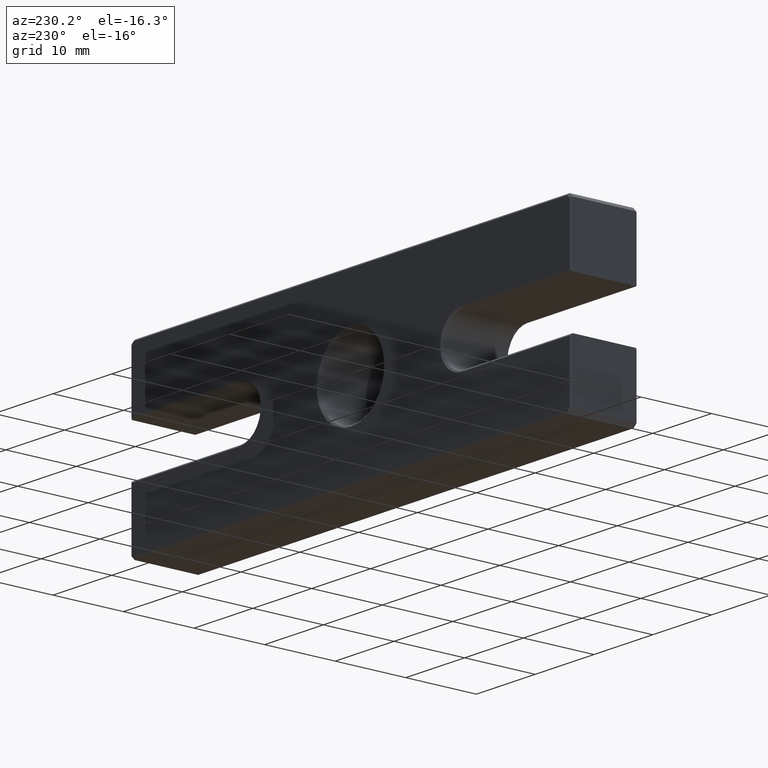
[diagram: clean part render]
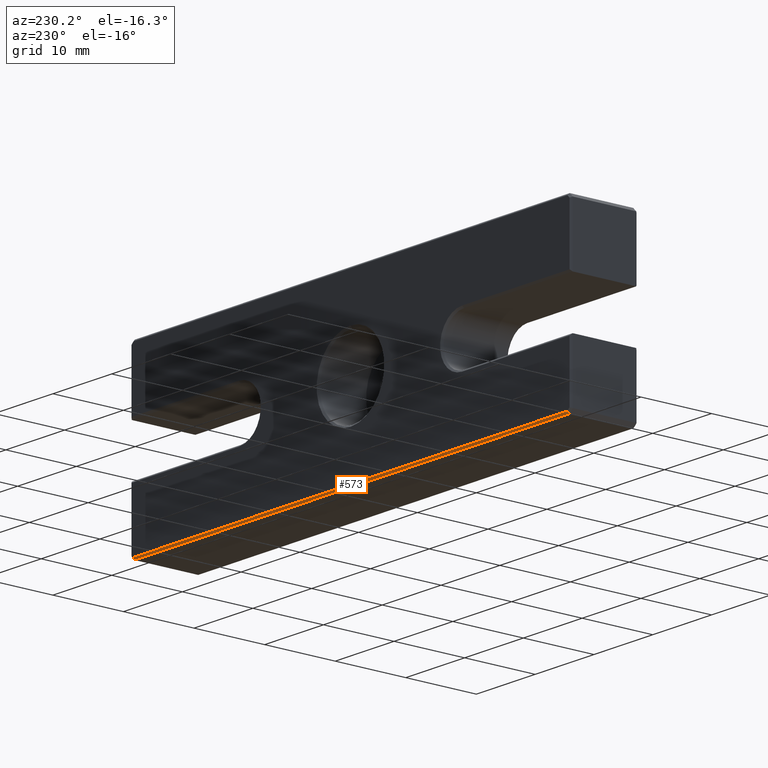
[diagram: same view with one face highlighted and labeled with its STEP entity id]
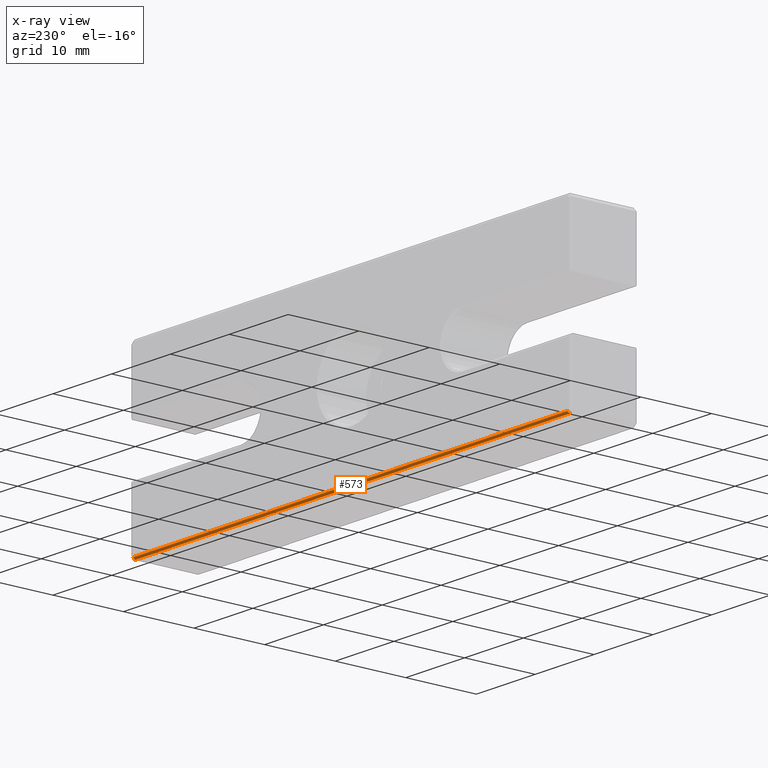
[diagram: x-ray of the same camera — body ghosted, the highlighted face saturated]
A machine part, auxiliary view. The second image highlights one B-rep face of the part: STEP entity #573.
The next image is the same camera in x-ray: the body ghosted, the highlighted face saturated — about 0% of this face is hidden behind the body in this view.
In plain terms, the highlighted planar face has unit normal (0, 0.7071, -0.7071).
Its self-contained STEP definition (entity closure, byte-faithful):
#42 = DIRECTION ( 'NONE',  ( 1.000000000000000000, 0.000000000000000000, 0.000000000000000000 ) ) ;
#156 = EDGE_CURVE ( 'NONE', #877, #224, #1111, .T. ) ;
#165 = CARTESIAN_POINT ( 'NONE',  ( 0.000000000000000000, 9.500000000000000000, -12.25000000000000178 ) ) ;
#171 = DIRECTION ( 'NONE',  ( 1.000000000000000000, -0.000000000000000000, 0.000000000000000000 ) ) ;
#224 = VERTEX_POINT ( 'NONE', #1344 ) ;
#262 = VECTOR ( 'NONE', #763, 1000.000000000000114 ) ;
#265 = CARTESIAN_POINT ( 'NONE',  ( -33.98131099339141059, 16.53775994034067054, -5.212240059659333014 ) ) ;
#280 = LINE ( 'NONE', #265, #1087 ) ;
#306 = VECTOR ( 'NONE', #42, 1000.000000000000000 ) ;
#397 = DIRECTION ( 'NONE',  ( 0.2810846377148324415, 0.6785983445458444452, 0.6785983445458444452 ) ) ;
#405 = FACE_OUTER_BOUND ( 'NONE', #1253, .T. ) ;
#460 = CARTESIAN_POINT ( 'NONE',  ( -37.00000000000000000, 9.250000000000000000, -12.50000000000000178 ) ) ;
#466 = LINE ( 'NONE', #1058, #1440 ) ;
#509 = ORIENTED_EDGE ( 'NONE', *, *, #705, .F. ) ;
#534 = LINE ( 'NONE', #1263, #262 ) ;
#547 = VERTEX_POINT ( 'NONE', #1442 ) ;
#573 = ADVANCED_FACE ( 'NONE', ( #405 ), #1226, .T. ) ;
#615 = ORIENTED_EDGE ( 'NONE', *, *, #156, .F. ) ;
#618 = CARTESIAN_POINT ( 'NONE',  ( 36.99999999999998579, 9.250000000000000000, -12.50000000000000178 ) ) ;
#637 = EDGE_CURVE ( 'NONE', #877, #547, #280, .T. ) ;
#655 = ORIENTED_EDGE ( 'NONE', *, *, #637, .T. ) ;
#705 = EDGE_CURVE ( 'NONE', #224, #1215, #534, .T. ) ;
#763 = DIRECTION ( 'NONE',  ( -0.2810846377148176201, 0.6785983445458475538, 0.6785983445458475538 ) ) ;
#833 = EDGE_CURVE ( 'NONE', #1215, #547, #466, .T. ) ;
#835 = DIRECTION ( 'NONE',  ( -1.000000000000000000, 0.000000000000000000, 0.000000000000000000 ) ) ;
#843 = DIRECTION ( 'NONE',  ( 0.000000000000000000, 0.7071067811865475727, -0.7071067811865475727 ) ) ;
#877 = VERTEX_POINT ( 'NONE', #460 ) ;
#905 = CARTESIAN_POINT ( 'NONE',  ( 36.89644660940670917, 9.500000000000000000, -12.25000000000000178 ) ) ;
#1058 = CARTESIAN_POINT ( 'NONE',  ( -37.00000000000000000, 9.500000000000000000, -12.25000000000000178 ) ) ;
#1063 = ORIENTED_EDGE ( 'NONE', *, *, #833, .F. ) ;
#1087 = VECTOR ( 'NONE', #397, 1000.000000000000227 ) ;
#1111 = LINE ( 'NONE', #618, #306 ) ;
#1215 = VERTEX_POINT ( 'NONE', #905 ) ;
#1226 = PLANE ( 'NONE',  #1508 ) ;
#1253 = EDGE_LOOP ( 'NONE', ( #655, #1063, #509, #615 ) ) ;
#1263 = CARTESIAN_POINT ( 'NONE',  ( 33.98131099339170902, 16.53775994034032593, -5.212240059659676739 ) ) ;
#1344 = CARTESIAN_POINT ( 'NONE',  ( 36.99999999999998579, 9.250000000000000000, -12.50000000000000178 ) ) ;
#1440 = VECTOR ( 'NONE', #835, 1000.000000000000000 ) ;
#1442 = CARTESIAN_POINT ( 'NONE',  ( -36.89644660940672338, 9.500000000000000000, -12.25000000000000178 ) ) ;
#1508 = AXIS2_PLACEMENT_3D ( 'NONE', #165, #843, #171 ) ;